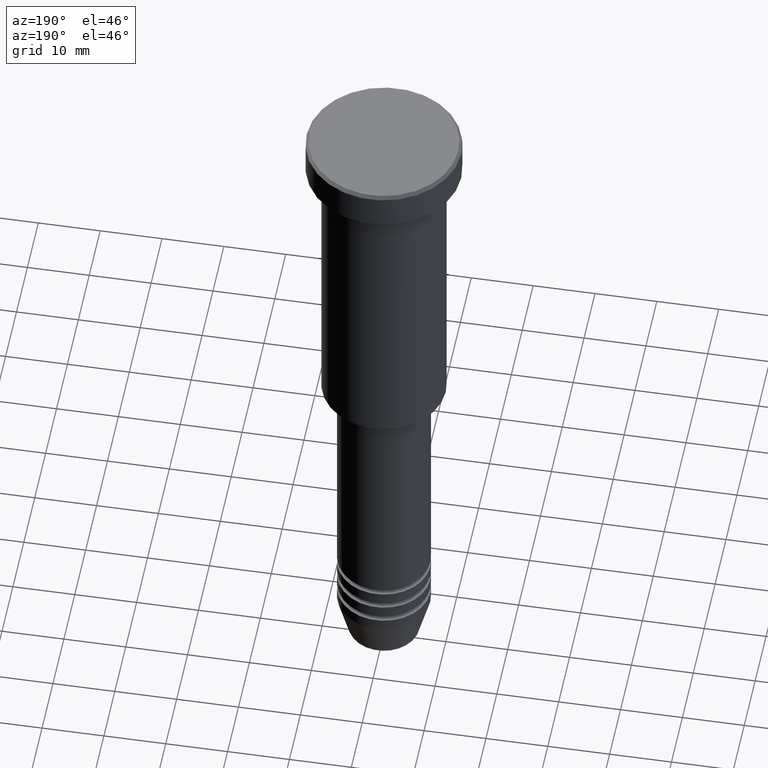
[diagram: clean part render]
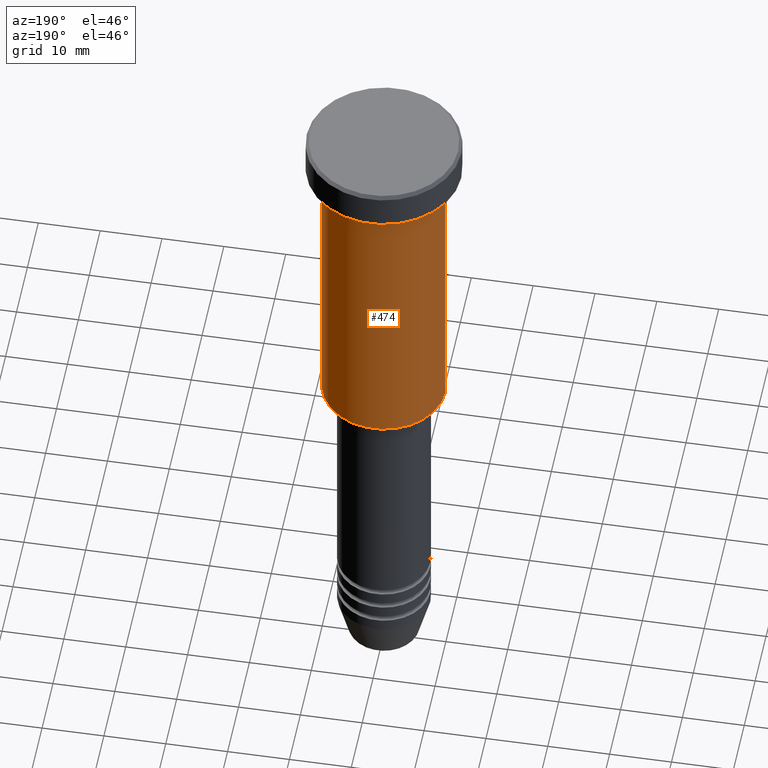
[diagram: same view with one face highlighted and labeled with its STEP entity id]
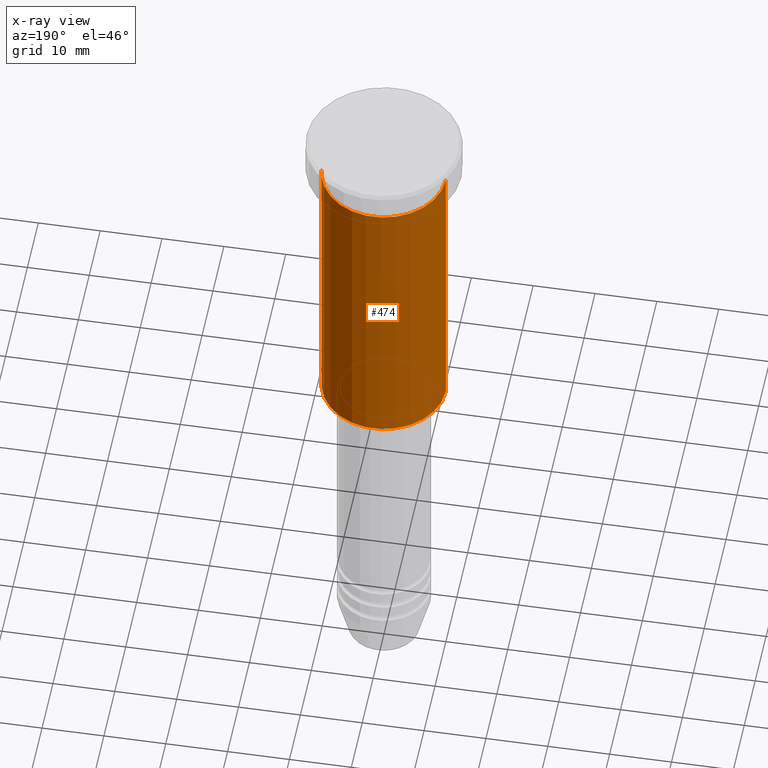
[diagram: x-ray of the same camera — body ghosted, the highlighted face saturated]
A machine part, auxiliary view. The second image highlights one B-rep face of the part: STEP entity #474.
The next image is the same camera in x-ray: the body ghosted, the highlighted face saturated — about 0% of this face is hidden behind the body in this view.
In plain terms, the highlighted cylindrical surface (partial cylindrical patch) has radius 10 mm, axis along (-0, -0, 1).
Its self-contained STEP definition (entity closure, byte-faithful):
#1 = DIRECTION ( 'NONE',  ( -0.000000000000000000, -0.000000000000000000, 1.000000000000000000 ) ) ;
#3 = EDGE_LOOP ( 'NONE', ( #763, #344, #748, #332 ) ) ;
#26 = CIRCLE ( 'NONE', #995, 10.00000000000000000 ) ;
#54 = CARTESIAN_POINT ( 'NONE',  ( 0.000000000000000000, 0.000000000000000000, -6.999999999999996447 ) ) ;
#98 = DIRECTION ( 'NONE',  ( -0.000000000000000000, -0.000000000000000000, 1.000000000000000000 ) ) ;
#114 = CYLINDRICAL_SURFACE ( 'NONE', #130, 10.00000000000000000 ) ;
#130 = AXIS2_PLACEMENT_3D ( 'NONE', #1085, #1102, #289 ) ;
#220 = DIRECTION ( 'NONE',  ( 1.000000000000000000, 0.000000000000000000, 0.000000000000000000 ) ) ;
#226 = DIRECTION ( 'NONE',  ( -0.000000000000000000, -0.000000000000000000, 1.000000000000000000 ) ) ;
#244 = CIRCLE ( 'NONE', #925, 10.00000000000000000 ) ;
#289 = DIRECTION ( 'NONE',  ( 1.000000000000000000, 0.000000000000000000, 0.000000000000000000 ) ) ;
#308 = CARTESIAN_POINT ( 'NONE',  ( -10.00000000000000000, 1.224646799147353256E-15, -6.999999999999996447 ) ) ;
#313 = EDGE_CURVE ( 'NONE', #564, #447, #529, .T. ) ;
#327 = VERTEX_POINT ( 'NONE', #470 ) ;
#332 = ORIENTED_EDGE ( 'NONE', *, *, #823, .F. ) ;
#344 = ORIENTED_EDGE ( 'NONE', *, *, #313, .T. ) ;
#367 = EDGE_CURVE ( 'NONE', #327, #564, #26, .T. ) ;
#373 = DIRECTION ( 'NONE',  ( -1.000000000000000000, 0.000000000000000000, 0.000000000000000000 ) ) ;
#447 = VERTEX_POINT ( 'NONE', #308 ) ;
#470 = CARTESIAN_POINT ( 'NONE',  ( 10.00000000000000000, 0.000000000000000000, -55.49999999999997868 ) ) ;
#474 = ADVANCED_FACE ( 'NONE', ( #746 ), #114, .T. ) ;
#529 = LINE ( 'NONE', #895, #1141 ) ;
#564 = VERTEX_POINT ( 'NONE', #757 ) ;
#653 = LINE ( 'NONE', #1114, #1113 ) ;
#664 = DIRECTION ( 'NONE',  ( -0.000000000000000000, -0.000000000000000000, 1.000000000000000000 ) ) ;
#746 = FACE_OUTER_BOUND ( 'NONE', #3, .T. ) ;
#748 = ORIENTED_EDGE ( 'NONE', *, *, #837, .F. ) ;
#752 = VERTEX_POINT ( 'NONE', #1104 ) ;
#757 = CARTESIAN_POINT ( 'NONE',  ( -10.00000000000000000, 1.224646799147353256E-15, -55.49999999999997868 ) ) ;
#763 = ORIENTED_EDGE ( 'NONE', *, *, #367, .T. ) ;
#823 = EDGE_CURVE ( 'NONE', #327, #752, #653, .T. ) ;
#824 = CARTESIAN_POINT ( 'NONE',  ( 0.000000000000000000, 0.000000000000000000, -55.49999999999997868 ) ) ;
#837 = EDGE_CURVE ( 'NONE', #752, #447, #244, .T. ) ;
#895 = CARTESIAN_POINT ( 'NONE',  ( -10.00000000000000000, 1.224646799147353256E-15, 0.000000000000000000 ) ) ;
#925 = AXIS2_PLACEMENT_3D ( 'NONE', #54, #226, #220 ) ;
#995 = AXIS2_PLACEMENT_3D ( 'NONE', #824, #1, #373 ) ;
#1085 = CARTESIAN_POINT ( 'NONE',  ( 0.000000000000000000, 0.000000000000000000, 0.000000000000000000 ) ) ;
#1102 = DIRECTION ( 'NONE',  ( -0.000000000000000000, -0.000000000000000000, 1.000000000000000000 ) ) ;
#1104 = CARTESIAN_POINT ( 'NONE',  ( 10.00000000000000000, 0.000000000000000000, -6.999999999999996447 ) ) ;
#1113 = VECTOR ( 'NONE', #664, 1000.000000000000000 ) ;
#1114 = CARTESIAN_POINT ( 'NONE',  ( 10.00000000000000000, 0.000000000000000000, 0.000000000000000000 ) ) ;
#1141 = VECTOR ( 'NONE', #98, 1000.000000000000000 ) ;